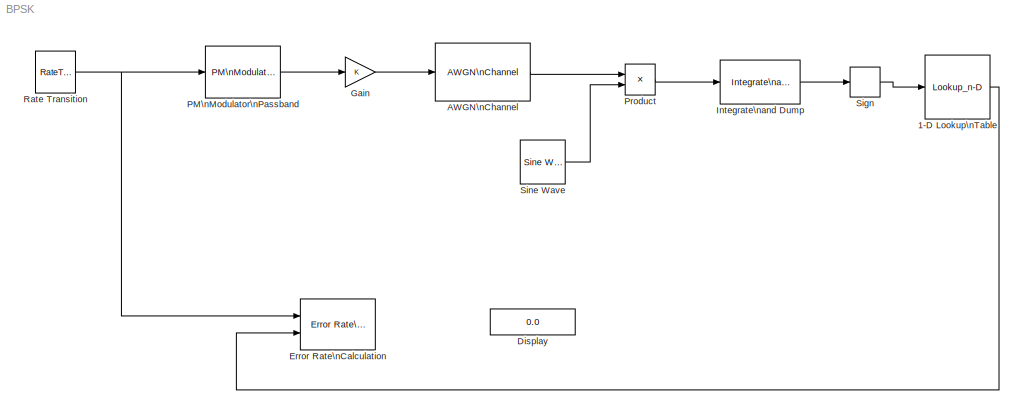
MODEL BPSK
KIND model
BLOCK [Lookup_n-D] 1-D Lookup\nTable
  BreakpointsForDimension1 = [-5:5]
  InternalRulePriority = Speed
  NumberOfTableDimensions = 1
  Ports = [1, 1]
  RndMeth = Simplest
  SID = 10
  Table = tanh([-5:5])
BLOCK [Reference] AWGN\nChannel  REF=commchan3/AWGN\nChannel
  EbNodB = 10
  EsNodB = 10
  InputProcessing = Columns as channels (frame based)
  Ports = [1, 1]
  Ps = 1
  SID = 5
  SNRdB = 10
  SourceBlock = commchan3/AWGN\nChannel
  SourceType = AWGN Channel
  Tsym = 1
  UserData = DataTag0
  UserDataPersistent = on
  bitsPerSym = 1
  noiseMode = Signal to noise ratio  (Eb/No)
  seed = 67
  variance = 1
BLOCK [Display] Display
  Decimation = 4
  Ports = [1]
  SID = 12
BLOCK [Reference] Error Rate\nCalculation  REF=commsink2/Error Rate\nCalculation
  N = 0
  PMode = Workspace
  Ports = [2]
  RsMode2 = off
  SID = 11
  SourceBlock = commsink2/Error Rate\nCalculation
  SourceType = Error Rate Calculation
  WsName = ErrorVec
  cp_mode = Entire frame
  maxBits = 1e6
  numErr = 100
  st_delay = 0
  stop = off
  subframe = []
BLOCK [Gain] Gain
  OutDataTypeStr = Inherit: Inherit via internal rule
  ParamDataTypeStr = Inherit: Inherit via internal rule
  SID = 4
  SaturateOnIntegerOverflow = off
BLOCK [Reference] Integrate\nand Dump  REF=commfilt2/Integrate\nand Dump
  LockScale = off
  Ports = [1, 1]
  SID = 8
  SourceBlock = commfilt2/Integrate\nand Dump
  SourceType = Integrate and Dump
  accumDataTypeStr = Inherit: Inherit via internal rule
  accumFracLength = 30
  accumLastDataTypeStr = Inherit: Inherit via internal rule
  accumMode = Inherit via internal rule
  accumWordLength = 32
  nodump = off
  obssamples = 8
  offsetsamples = 0
  outputDataTypeStr = Inherit: Same as accumulator
  outputFracLength = 30
  outputLastDataTypeStr = Inherit: Same as accumulator
  outputMode = Same as accumulator
  outputWordLength = 32
  overflowMode = off
  roundingMode = Floor
BLOCK [Reference] PM\nModulator\nPassband  REF=commanapbnd3/PM\nModulator\nPassband
  Fc = 300
  Kc = pi/2
  Ph = 0
  Ports = [1, 1]
  SID = 3
  SourceBlock = commanapbnd3/PM\nModulator\nPassband
  SourceType = PM Modulator Passband
BLOCK [Product] Product
  InputSameDT = off
  OutDataTypeStr = Inherit: Inherit via internal rule
  Ports = [2, 1]
  RndMeth = Floor
  SID = 6
  SaturateOnIntegerOverflow = off
BLOCK [RateTransition] Rate Transition
  SID = 2
BLOCK [Signum] Sign
  SID = 9
BLOCK [Reference] Sine Wave  REF=dspsrcs4/Sine Wave
  Amplitude = 1
  CompMethod = Trigonometric fcn
  Frequency = 100
  LastOutDataTypeStr = double
  OutComplex = Real
  OutDataTypeStr = double
  OutputFrames = off
  Phase = 0
  Ports = [0, 1]
  ResetState = Restart at time zero
  SID = 7
  SampleMode = Discrete
  SampleTime = 1/1000
  SamplesPerFrame = 1
  SourceBlock = dspsrcs4/Sine Wave
  SourceType = Sine Wave
  TableSize = Speed
  additionalParams = off
  allowOverrides = on
  dataType = double
  fracBitsMode = Best precision
  numFracBits = 15
  udDataType = sfix(16)
  wordLen = 16
LINE 1-D Lookup\nTable:1 -> Error Rate\nCalculation:2
LINE AWGN\nChannel:1 -> Product:1
LINE Gain:1 -> AWGN\nChannel:1
LINE Integrate\nand Dump:1 -> Sign:1
LINE PM\nModulator\nPassband:1 -> Gain:1
LINE Product:1 -> Integrate\nand Dump:1
NET Rate Transition:1 -> Error Rate\nCalculation:1, PM\nModulator\nPassband:1
LINE Sign:1 -> 1-D Lookup\nTable:1
LINE Sine Wave:1 -> Product:2
note: NET lines group one-source signal fan-out (src -> all destinations, sorted); 1:1 wires keep LINE
